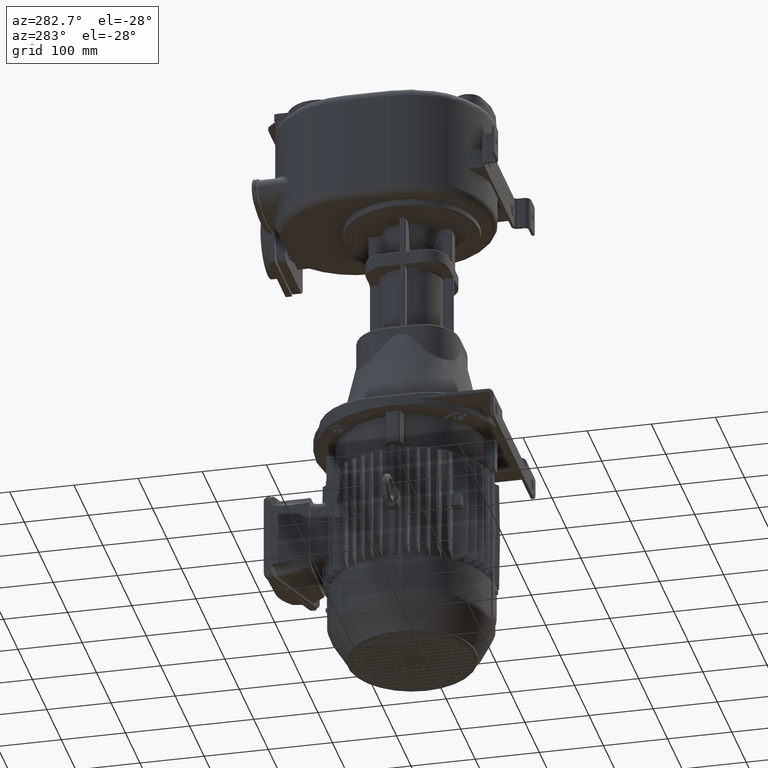
[diagram: clean part render]
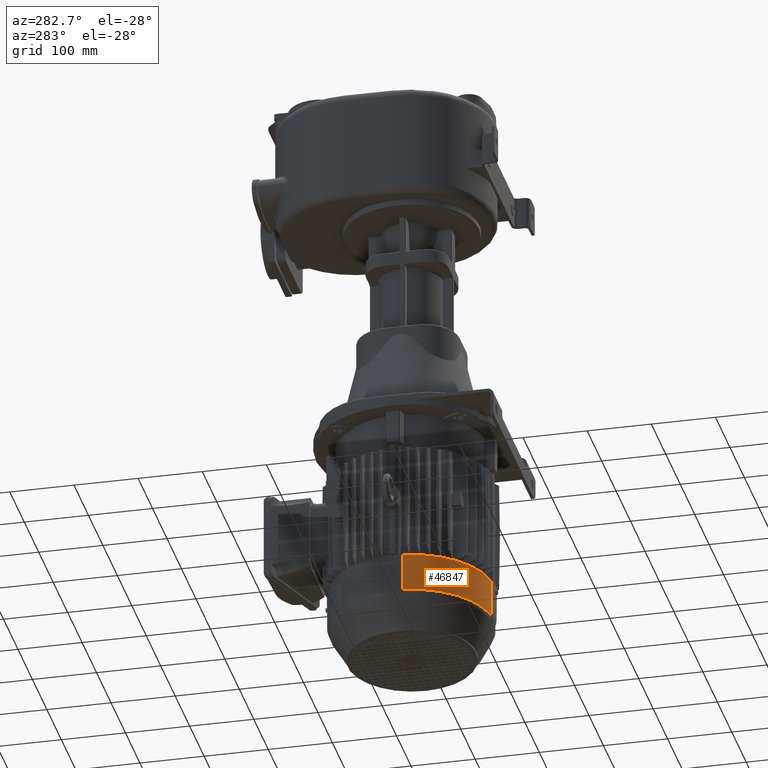
[diagram: same view with one face highlighted and labeled with its STEP entity id]
A machine part, auxiliary view. The second image highlights one B-rep face of the part: STEP entity #46847.
In plain terms, the highlighted cylindrical surface (partial cylindrical patch) has radius 127.75 mm, axis along (0, 0, -1).
Its self-contained STEP definition (entity closure, byte-faithful):
#2293=CARTESIAN_POINT('',(0.E0,1.309999999999E2,-6.942001E2));
#2294=DIRECTION('',(0.E0,0.E0,1.E0));
#2295=DIRECTION('',(-9.931901222367E-1,-1.165048543689E-1,0.E0));
#2296=AXIS2_PLACEMENT_3D('',#2293,#2294,#2295);
#2415=DIRECTION('',(0.E0,0.E0,1.E0));
#2416=VECTOR('',#2415,5.973225400103E1);
#2417=CARTESIAN_POINT('',(-1.268800381157E2,1.161165048543E2,
-7.539323540010E2));
#2418=LINE('',#2417,#2416);
#2448=CARTESIAN_POINT('',(-1.435824229406E-14,1.309999999999E2,
-7.539323540010E2));
#2449=DIRECTION('',(0.E0,0.E0,-1.E0));
#2450=DIRECTION('',(-1.165048543689E-1,-9.931901222367E-1,0.E0));
#2451=AXIS2_PLACEMENT_3D('',#2448,#2449,#2450);
#2483=DIRECTION('',(0.E0,0.E0,-1.E0));
#2484=VECTOR('',#2483,5.973225400103E1);
#2485=CARTESIAN_POINT('',(-1.488349514563E1,4.119961884194E0,-6.942001E2));
#2486=LINE('',#2485,#2484);
#39322=CARTESIAN_POINT('',(-1.268800381157E2,1.161165048543E2,
-7.539323540010E2));
#39323=CARTESIAN_POINT('',(-1.268800381157E2,1.161165048543E2,-6.942001E2));
#39324=VERTEX_POINT('',#39322);
#39325=VERTEX_POINT('',#39323);
#39330=CARTESIAN_POINT('',(-1.488349514563E1,4.119961884194E0,-6.942001E2));
#39331=VERTEX_POINT('',#39330);
#39338=CARTESIAN_POINT('',(-1.488349514563E1,4.119961884194E0,
-7.539323540010E2));
#39339=VERTEX_POINT('',#39338);
#46835=CARTESIAN_POINT('',(-2.080726573740E-14,1.309999999999E2,
-8.241491429497E2));
#46836=DIRECTION('',(0.E0,0.E0,-1.E0));
#46837=DIRECTION('',(-1.E0,0.E0,0.E0));
#46838=AXIS2_PLACEMENT_3D('',#46835,#46836,#46837);
#46839=CYLINDRICAL_SURFACE('',#46838,1.2775E2);
#46840=ORIENTED_EDGE('',*,*,#46549,.T.);
#46842=ORIENTED_EDGE('',*,*,#46841,.T.);
#46843=ORIENTED_EDGE('',*,*,#46826,.T.);
#46844=ORIENTED_EDGE('',*,*,#46698,.T.);
#46845=EDGE_LOOP('',(#46840,#46842,#46843,#46844));
#46846=FACE_OUTER_BOUND('',#46845,.F.);
#46847=ADVANCED_FACE('',(#46846),#46839,.T.);
#2297=CIRCLE('',#2296,1.2775E2);
#2452=CIRCLE('',#2451,1.2775E2);
#46549=EDGE_CURVE('',#39325,#39331,#2297,.T.);
#46698=EDGE_CURVE('',#39324,#39325,#2418,.T.);
#46826=EDGE_CURVE('',#39339,#39324,#2452,.T.);
#46841=EDGE_CURVE('',#39331,#39339,#2486,.T.);